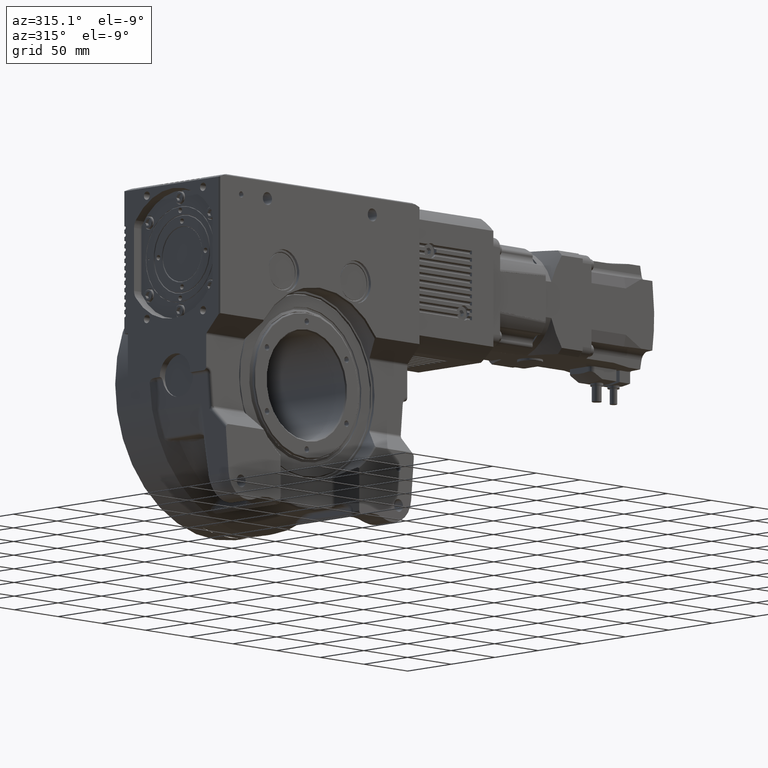
[diagram: clean part render]
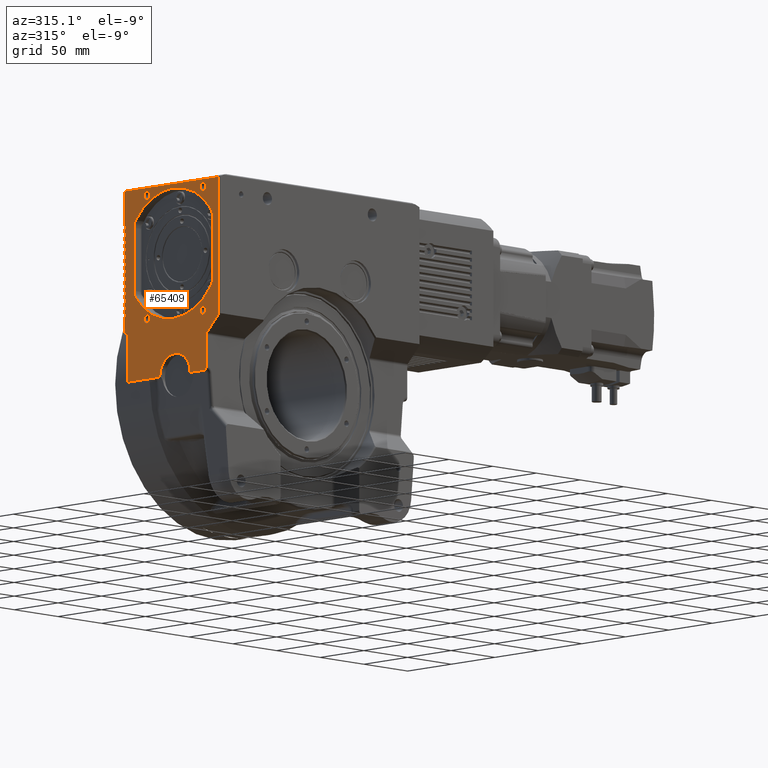
[diagram: same view with one face highlighted and labeled with its STEP entity id]
A machine part, auxiliary view. The second image highlights one B-rep face of the part: STEP entity #65409.
In plain terms, the highlighted planar face has unit normal (-1, 0, 0).
Its self-contained STEP definition (entity closure, byte-faithful):
#90 = VERTEX_POINT ( 'NONE', #10042 ) ;
#568 = ORIENTED_EDGE ( 'NONE', *, *, #54960, .F. ) ;
#798 = DIRECTION ( 'NONE',  ( 0.000000000000000000, 0.000000000000000000, 1.000000000000000000 ) ) ;
#954 = EDGE_LOOP ( 'NONE', ( #568, #42209, #30627, #84077, #67833, #1469, #57605, #60364, #23079, #32763, #3922, #20898, #27532, #69414, #47215, #58045, #7188, #55053, #57075, #6059, #73608, #80637, #40006, #68809, #33690, #39258, #44494, #31134, #46328, #24406, #71956, #26193, #37437, #9670, #10157, #25060, #73228, #69009, #79605, #34814, #80550, #64885, #57741, #33245, #50850, #38531, #49401, #59043, #56034, #17340, #39451 ) ) ;
#1327 = CARTESIAN_POINT ( 'NONE',  ( -115.0000000000000000, 58.00000000000000000, 128.5000000000000000 ) ) ;
#1425 = ORIENTED_EDGE ( 'NONE', *, *, #6509, .F. ) ;
#1455 = DIRECTION ( 'NONE',  ( -1.000000000000000000, 0.000000000000000000, 0.000000000000000000 ) ) ;
#1469 = ORIENTED_EDGE ( 'NONE', *, *, #36957, .T. ) ;
#1470 = CARTESIAN_POINT ( 'NONE',  ( -115.0000000000000000, 58.00000000000000000, -115.0000000000000000 ) ) ;
#1545 = EDGE_CURVE ( 'NONE', #48410, #48136, #83540, .T. ) ;
#1580 = CIRCLE ( 'NONE', #2941, 1.500000000000001332 ) ;
#1784 = AXIS2_PLACEMENT_3D ( 'NONE', #62451, #69384, #68946 ) ;
#1874 = CARTESIAN_POINT ( 'NONE',  ( -115.0000000000000000, 0.000000000000000000, 1.741031561343995111E-14 ) ) ;
#1908 = CARTESIAN_POINT ( 'NONE',  ( -115.0000000000000000, -36.00000000000000000, 30.00000000000000000 ) ) ;
#1968 = CARTESIAN_POINT ( 'NONE',  ( -115.0000000000000000, 58.00000000000000000, -115.0000000000000000 ) ) ;
#2428 = VECTOR ( 'NONE', #21539, 1000.000000000000000 ) ;
#2464 = CARTESIAN_POINT ( 'NONE',  ( -115.0000000000000000, 58.00000000000000000, 109.0000000000000000 ) ) ;
#2499 = AXIS2_PLACEMENT_3D ( 'NONE', #1874, #1455, #40603 ) ;
#2707 = CARTESIAN_POINT ( 'NONE',  ( -115.0000000000000000, 2.000000000000000000, 100.0000000000000000 ) ) ;
#2816 = CARTESIAN_POINT ( 'NONE',  ( -115.0000000000000000, 58.00000000000000000, 77.50000000000000000 ) ) ;
#2941 = AXIS2_PLACEMENT_3D ( 'NONE', #2464, #54659, #21601 ) ;
#2985 = DIRECTION ( 'NONE',  ( 1.000000000000000000, 0.000000000000000000, 0.000000000000000000 ) ) ;
#3071 = LINE ( 'NONE', #9625, #14437 ) ;
#3096 = AXIS2_PLACEMENT_3D ( 'NONE', #49364, #75075, #42401 ) ;
#3358 = EDGE_CURVE ( 'NONE', #48884, #35505, #1580, .T. ) ;
#3374 = CARTESIAN_POINT ( 'NONE',  ( -115.0000000000000000, 29.00000000000000000, -35.00000000000000000 ) ) ;
#3390 = CIRCLE ( 'NONE', #13107, 1.500000000000001332 ) ;
#3922 = ORIENTED_EDGE ( 'NONE', *, *, #76828, .T. ) ;
#4003 = VERTEX_POINT ( 'NONE', #31518 ) ;
#4032 = CARTESIAN_POINT ( 'NONE',  ( -115.0000000000000000, 54.00000000000000000, 40.00000000000000000 ) ) ;
#4077 = EDGE_CURVE ( 'NONE', #76255, #45218, #75825, .T. ) ;
#4094 = CARTESIAN_POINT ( 'NONE',  ( -115.0000000000000000, 56.50000000000000000, 85.00000000000000000 ) ) ;
#4646 = CARTESIAN_POINT ( 'NONE',  ( -115.0000000000000000, -43.00000000000000000, 74.16881729382110677 ) ) ;
#4686 = EDGE_CURVE ( 'NONE', #42840, #49336, #84642, .T. ) ;
#4720 = CARTESIAN_POINT ( 'NONE',  ( -115.0000000000000000, 58.00000000000000000, 59.50000000000000000 ) ) ;
#5030 = AXIS2_PLACEMENT_3D ( 'NONE', #40829, #46059, #67804 ) ;
#5206 = VECTOR ( 'NONE', #15466, 1000.000000000000000 ) ;
#5521 = CARTESIAN_POINT ( 'NONE',  ( -115.0000000000000000, -32.23797650080950206, 154.0034867487730139 ) ) ;
#5605 = DIRECTION ( 'NONE',  ( 0.000000000000000000, 1.000000000000000000, 0.000000000000000000 ) ) ;
#6046 = CARTESIAN_POINT ( 'NONE',  ( -115.0000000000000000, 58.00000000000000000, 115.0000000000000000 ) ) ;
#6059 = ORIENTED_EDGE ( 'NONE', *, *, #67694, .T. ) ;
#6389 = VECTOR ( 'NONE', #41954, 1000.000000000000000 ) ;
#6469 = DIRECTION ( 'NONE',  ( -1.000000000000000000, 0.000000000000000000, 0.000000000000000000 ) ) ;
#6475 = DIRECTION ( 'NONE',  ( 1.000000000000000000, 0.000000000000000000, 0.000000000000000000 ) ) ;
#6505 = AXIS2_PLACEMENT_3D ( 'NONE', #64081, #83667, #24052 ) ;
#6509 = EDGE_CURVE ( 'NONE', #18499, #75376, #11934, .T. ) ;
#6710 = CIRCLE ( 'NONE', #85882, 1.500000000000001332 ) ;
#7033 = CARTESIAN_POINT ( 'NONE',  ( -115.0000000000000000, -50.00000000000000000, 157.0000000000000000 ) ) ;
#7102 = DIRECTION ( 'NONE',  ( -1.513940488125214831E-16, 0.000000000000000000, -1.000000000000000000 ) ) ;
#7188 = ORIENTED_EDGE ( 'NONE', *, *, #8047, .T. ) ;
#7653 = DIRECTION ( 'NONE',  ( 1.000000000000000000, 0.000000000000000000, 0.000000000000000000 ) ) ;
#7798 = EDGE_CURVE ( 'NONE', #39890, #47943, #11759, .T. ) ;
#7863 = CARTESIAN_POINT ( 'NONE',  ( -115.0000000000000000, 58.00000000000000000, 74.50000000000000000 ) ) ;
#7919 = EDGE_CURVE ( 'NONE', #12868, #13797, #74654, .T. ) ;
#8047 = EDGE_CURVE ( 'NONE', #75565, #48884, #55279, .T. ) ;
#8616 = AXIS2_PLACEMENT_3D ( 'NONE', #34150, #54572, #74164 ) ;
#8973 = AXIS2_PLACEMENT_3D ( 'NONE', #61532, #13263, #46739 ) ;
#8994 = DIRECTION ( 'NONE',  ( -1.000000000000000000, 0.000000000000000000, 2.593979029498029835E-16 ) ) ;
#9155 = EDGE_CURVE ( 'NONE', #24251, #4003, #58745, .T. ) ;
#9190 = VERTEX_POINT ( 'NONE', #79623 ) ;
#9245 = CARTESIAN_POINT ( 'NONE',  ( -115.0000000000000000, 58.00000000000000000, 53.50000000000000000 ) ) ;
#9307 = CIRCLE ( 'NONE', #6505, 1.500000000000001332 ) ;
#9327 = VECTOR ( 'NONE', #19831, 1000.000000000000000 ) ;
#9625 = CARTESIAN_POINT ( 'NONE',  ( -115.0000000000000000, 58.00000000000000000, -115.0000000000000000 ) ) ;
#9670 = ORIENTED_EDGE ( 'NONE', *, *, #83689, .T. ) ;
#9998 = CARTESIAN_POINT ( 'NONE',  ( -115.0000000000000000, 56.50000000000000000, 103.0000000000000000 ) ) ;
#10009 = CIRCLE ( 'NONE', #3096, 9.999999999999994671 ) ;
#10042 = CARTESIAN_POINT ( 'NONE',  ( -115.0000000000000000, 58.00000000000000000, 71.50000000000000000 ) ) ;
#10048 = CARTESIAN_POINT ( 'NONE',  ( -115.0000000000000000, 32.23797650080950206, 49.39651325122689940 ) ) ;
#10157 = ORIENTED_EDGE ( 'NONE', *, *, #77236, .T. ) ;
#10451 = AXIS2_PLACEMENT_3D ( 'NONE', #78003, #51861, #31003 ) ;
#10892 = AXIS2_PLACEMENT_3D ( 'NONE', #32313, #38862, #52775 ) ;
#11067 = CARTESIAN_POINT ( 'NONE',  ( -115.0000000000000000, -32.23797650080950206, 147.2034867487730025 ) ) ;
#11146 = DIRECTION ( 'NONE',  ( 0.000000000000000000, 0.000000000000000000, 1.000000000000000000 ) ) ;
#11236 = EDGE_CURVE ( 'NONE', #9190, #77948, #3071, .T. ) ;
#11293 = DIRECTION ( 'NONE',  ( 0.000000000000000000, 0.000000000000000000, 1.000000000000000000 ) ) ;
#11466 = DIRECTION ( 'NONE',  ( 0.000000000000000000, 0.000000000000000000, 1.000000000000000000 ) ) ;
#11577 = CARTESIAN_POINT ( 'NONE',  ( -115.0000000000000000, -50.00000000000000000, 157.0000000000000000 ) ) ;
#11654 = VERTEX_POINT ( 'NONE', #56919 ) ;
#11702 = DIRECTION ( 'NONE',  ( -1.000000000000000000, 0.000000000000000000, 1.513940488125214831E-16 ) ) ;
#11759 = LINE ( 'NONE', #83976, #63520 ) ;
#11900 = LINE ( 'NONE', #85396, #31980 ) ;
#11934 = CIRCLE ( 'NONE', #60566, 3.399999999999986144 ) ;
#12036 = CIRCLE ( 'NONE', #20357, 1.500000000000001332 ) ;
#12052 = VERTEX_POINT ( 'NONE', #20315 ) ;
#12133 = PLANE ( 'NONE',  #57113 ) ;
#12340 = EDGE_CURVE ( 'NONE', #76255, #85749, #60395, .T. ) ;
#12570 = FACE_BOUND ( 'NONE', #36915, .T. ) ;
#12637 = ORIENTED_EDGE ( 'NONE', *, *, #15829, .T. ) ;
#12672 = EDGE_CURVE ( 'NONE', #70824, #39970, #77086, .T. ) ;
#12809 = CARTESIAN_POINT ( 'NONE',  ( -115.0000000000000000, 17.50000000000000000, 3.081487911019580167E-30 ) ) ;
#12868 = VERTEX_POINT ( 'NONE', #17754 ) ;
#12879 = CARTESIAN_POINT ( 'NONE',  ( -115.0000000000000000, 56.50000000000000000, 55.00000000000000000 ) ) ;
#13033 = EDGE_CURVE ( 'NONE', #19354, #29210, #18817, .T. ) ;
#13107 = AXIS2_PLACEMENT_3D ( 'NONE', #51383, #85302, #32224 ) ;
#13189 = CARTESIAN_POINT ( 'NONE',  ( -115.0000000000000000, 56.50000000000000000, 109.0000000000000000 ) ) ;
#13263 = DIRECTION ( 'NONE',  ( 1.000000000000000000, 0.000000000000000000, 0.000000000000000000 ) ) ;
#13405 = CARTESIAN_POINT ( 'NONE',  ( -115.0000000000000000, 59.00000000000000000, 0.000000000000000000 ) ) ;
#13480 = DIRECTION ( 'NONE',  ( -1.000000000000000000, 0.000000000000000000, 0.000000000000000000 ) ) ;
#13718 = CIRCLE ( 'NONE', #35926, 53.49999999999999289 ) ;
#13765 = EDGE_CURVE ( 'NONE', #64062, #20043, #33192, .T. ) ;
#13777 = VECTOR ( 'NONE', #81534, 1000.000000000000000 ) ;
#13797 = VERTEX_POINT ( 'NONE', #74489 ) ;
#14044 = DIRECTION ( 'NONE',  ( -1.000000000000000000, 0.000000000000000000, 2.593979029498029835E-16 ) ) ;
#14268 = EDGE_CURVE ( 'NONE', #42595, #82790, #71724, .T. ) ;
#14298 = CARTESIAN_POINT ( 'NONE',  ( -115.0000000000000000, 56.50000000000000000, 73.00000000000000000 ) ) ;
#14437 = VECTOR ( 'NONE', #29591, 1000.000000000000000 ) ;
#15033 = DIRECTION ( 'NONE',  ( 0.000000000000000000, 0.000000000000000000, 1.000000000000000000 ) ) ;
#15102 = CIRCLE ( 'NONE', #53964, 10.00000000000000888 ) ;
#15466 = DIRECTION ( 'NONE',  ( 0.000000000000000000, 1.000000000000000000, 0.000000000000000000 ) ) ;
#15590 = DIRECTION ( 'NONE',  ( -1.513940488125214831E-16, 0.000000000000000000, -1.000000000000000000 ) ) ;
#15824 = CARTESIAN_POINT ( 'NONE',  ( -115.0000000000000000, -33.00000000000000000, 0.000000000000000000 ) ) ;
#15829 = EDGE_CURVE ( 'NONE', #50937, #25652, #80333, .T. ) ;
#16005 = CARTESIAN_POINT ( 'NONE',  ( -115.0000000000000000, 58.00000000000000000, -115.0000000000000000 ) ) ;
#16062 = VERTEX_POINT ( 'NONE', #68798 ) ;
#16101 = CARTESIAN_POINT ( 'NONE',  ( -115.0000000000000000, 47.00000000000000000, 125.8311827061789927 ) ) ;
#16148 = CIRCLE ( 'NONE', #30035, 3.400000000000000355 ) ;
#16285 = VECTOR ( 'NONE', #38770, 1000.000000000000000 ) ;
#16309 = VERTEX_POINT ( 'NONE', #21207 ) ;
#17252 = EDGE_CURVE ( 'NONE', #48856, #68939, #3390, .T. ) ;
#17306 = ORIENTED_EDGE ( 'NONE', *, *, #26756, .F. ) ;
#17340 = ORIENTED_EDGE ( 'NONE', *, *, #54391, .T. ) ;
#17417 = AXIS2_PLACEMENT_3D ( 'NONE', #40685, #7653, #15033 ) ;
#17455 = AXIS2_PLACEMENT_3D ( 'NONE', #52531, #86042, #26442 ) ;
#17561 = DIRECTION ( 'NONE',  ( -1.000000000000000000, 0.000000000000000000, 0.000000000000000000 ) ) ;
#17579 = CIRCLE ( 'NONE', #5030, 1.500000000000001332 ) ;
#17644 = CARTESIAN_POINT ( 'NONE',  ( -115.0000000000000000, 58.00000000000000000, 109.0000000000000000 ) ) ;
#17730 = VECTOR ( 'NONE', #52652, 1000.000000000000000 ) ;
#17754 = CARTESIAN_POINT ( 'NONE',  ( -115.0000000000000000, -41.04597701149424438, 131.7693856271395987 ) ) ;
#17820 = DIRECTION ( 'NONE',  ( 1.000000000000000000, 0.000000000000000000, 0.000000000000000000 ) ) ;
#18101 = DIRECTION ( 'NONE',  ( -1.000000000000000000, 0.000000000000000000, 0.000000000000000000 ) ) ;
#18119 = CIRCLE ( 'NONE', #70892, 3.399999999999986144 ) ;
#18133 = CIRCLE ( 'NONE', #79263, 3.399999999999986144 ) ;
#18296 = CARTESIAN_POINT ( 'NONE',  ( -115.0000000000000000, -43.00000000000000000, 71.06472740753949324 ) ) ;
#18346 = EDGE_CURVE ( 'NONE', #39970, #61842, #62416, .T. ) ;
#18382 = CIRCLE ( 'NONE', #36451, 53.49999999999999289 ) ;
#18499 = VERTEX_POINT ( 'NONE', #11067 ) ;
#18560 = CIRCLE ( 'NONE', #74159, 17.50000000000000000 ) ;
#18643 = VERTEX_POINT ( 'NONE', #58450 ) ;
#18690 = DIRECTION ( 'NONE',  ( -1.513940488125214831E-16, 0.000000000000000000, -1.000000000000000000 ) ) ;
#18730 = CARTESIAN_POINT ( 'NONE',  ( -115.0000000000000000, 58.00000000000000000, -115.0000000000000000 ) ) ;
#18733 = CARTESIAN_POINT ( 'NONE',  ( -115.0000000000000000, 58.00000000000000000, 119.5000000000000000 ) ) ;
#18817 = CIRCLE ( 'NONE', #17455, 1.500000000000001332 ) ;
#19131 = CARTESIAN_POINT ( 'NONE',  ( -115.0000000000000000, 58.00000000000000000, -115.0000000000000000 ) ) ;
#19354 = VERTEX_POINT ( 'NONE', #12879 ) ;
#19500 = CARTESIAN_POINT ( 'NONE',  ( -115.0000000000000000, -32.23797650080950206, 52.79651325122699745 ) ) ;
#19514 = VERTEX_POINT ( 'NONE', #28066 ) ;
#19524 = DIRECTION ( 'NONE',  ( 0.000000000000000000, 0.000000000000000000, 1.000000000000000000 ) ) ;
#19547 = EDGE_CURVE ( 'NONE', #65651, #22959, #66059, .T. ) ;
#19652 = DIRECTION ( 'NONE',  ( 1.000000000000000000, 3.151521727179109512E-31, -6.560422470226279382E-46 ) ) ;
#19831 = DIRECTION ( 'NONE',  ( -1.513940488125214831E-16, 0.000000000000000000, -1.000000000000000000 ) ) ;
#19914 = LINE ( 'NONE', #13405, #56134 ) ;
#20043 = VERTEX_POINT ( 'NONE', #29654 ) ;
#20315 = CARTESIAN_POINT ( 'NONE',  ( -115.0000000000000000, 56.50000000000000000, 61.00000000000000000 ) ) ;
#20357 = AXIS2_PLACEMENT_3D ( 'NONE', #72578, #6475, #798 ) ;
#20452 = CARTESIAN_POINT ( 'NONE',  ( -115.0000000000000000, 58.00000000000000000, 56.50000000000000000 ) ) ;
#20637 = EDGE_CURVE ( 'NONE', #50679, #90, #12036, .T. ) ;
#20664 = DIRECTION ( 'NONE',  ( -1.000000000000000000, 0.000000000000000000, 0.000000000000000000 ) ) ;
#20834 = EDGE_CURVE ( 'NONE', #90, #65651, #70331, .T. ) ;
#20898 = ORIENTED_EDGE ( 'NONE', *, *, #37695, .F. ) ;
#21137 = CARTESIAN_POINT ( 'NONE',  ( -115.0000000000000000, 45.04597701149420175, 68.23061437286040132 ) ) ;
#21139 = DIRECTION ( 'NONE',  ( 0.000000000000000000, 0.000000000000000000, 1.000000000000000000 ) ) ;
#21147 = EDGE_CURVE ( 'NONE', #69825, #72924, #9307, .T. ) ;
#21203 = VERTEX_POINT ( 'NONE', #15824 ) ;
#21207 = CARTESIAN_POINT ( 'NONE',  ( -115.0000000000000000, 58.00000000000000000, 95.50000000000000000 ) ) ;
#21539 = DIRECTION ( 'NONE',  ( -1.513940488125214831E-16, 0.000000000000000000, -1.000000000000000000 ) ) ;
#21601 = DIRECTION ( 'NONE',  ( 0.000000000000000000, 0.000000000000000000, 1.000000000000000000 ) ) ;
#21968 = CIRCLE ( 'NONE', #56678, 1.500000000000001332 ) ;
#22045 = EDGE_CURVE ( 'NONE', #22959, #64062, #67798, .T. ) ;
#22166 = VERTEX_POINT ( 'NONE', #77807 ) ;
#22427 = VERTEX_POINT ( 'NONE', #48591 ) ;
#22470 = DIRECTION ( 'NONE',  ( 0.000000000000000000, 1.199037244548930032E-16, -1.000000000000000000 ) ) ;
#22669 = AXIS2_PLACEMENT_3D ( 'NONE', #44737, #43443, #11293 ) ;
#22959 = VERTEX_POINT ( 'NONE', #24829 ) ;
#23079 = ORIENTED_EDGE ( 'NONE', *, *, #11236, .T. ) ;
#23096 = EDGE_CURVE ( 'NONE', #50937, #38831, #72642, .T. ) ;
#23353 = VECTOR ( 'NONE', #51320, 1000.000000000000000 ) ;
#23938 = VERTEX_POINT ( 'NONE', #11577 ) ;
#24052 = DIRECTION ( 'NONE',  ( 0.000000000000000000, 0.000000000000000000, 1.000000000000000000 ) ) ;
#24251 = VERTEX_POINT ( 'NONE', #51481 ) ;
#24406 = ORIENTED_EDGE ( 'NONE', *, *, #17252, .T. ) ;
#24829 = CARTESIAN_POINT ( 'NONE',  ( -115.0000000000000000, 56.50000000000000000, 67.00000000000000000 ) ) ;
#24912 = ORIENTED_EDGE ( 'NONE', *, *, #4686, .F. ) ;
#24933 = CARTESIAN_POINT ( 'NONE',  ( -115.0000000000000000, -36.00000000000000000, 28.75735931288070191 ) ) ;
#25060 = ORIENTED_EDGE ( 'NONE', *, *, #20637, .T. ) ;
#25375 = DIRECTION ( 'NONE',  ( 0.000000000000000000, 0.000000000000000000, 1.000000000000000000 ) ) ;
#25524 = CIRCLE ( 'NONE', #83906, 1.500000000000001332 ) ;
#25652 = VERTEX_POINT ( 'NONE', #41754 ) ;
#26193 = ORIENTED_EDGE ( 'NONE', *, *, #40410, .T. ) ;
#26245 = DIRECTION ( 'NONE',  ( 0.000000000000000000, -1.000000000000000000, 0.000000000000000000 ) ) ;
#26357 = CARTESIAN_POINT ( 'NONE',  ( -115.0000000000000000, -32.23797650080950206, 45.99651325122700030 ) ) ;
#26442 = DIRECTION ( 'NONE',  ( 0.000000000000000000, 0.000000000000000000, 1.000000000000000000 ) ) ;
#26483 = FACE_BOUND ( 'NONE', #48209, .T. ) ;
#26756 = EDGE_CURVE ( 'NONE', #49336, #42840, #69363, .T. ) ;
#27013 = CARTESIAN_POINT ( 'NONE',  ( -115.0000000000000000, 58.00000000000000000, 107.5000000000000000 ) ) ;
#27354 = CARTESIAN_POINT ( 'NONE',  ( -115.0000000000000000, 58.00000000000000000, 103.0000000000000000 ) ) ;
#27372 = ORIENTED_EDGE ( 'NONE', *, *, #61710, .F. ) ;
#27532 = ORIENTED_EDGE ( 'NONE', *, *, #43905, .T. ) ;
#27677 = CARTESIAN_POINT ( 'NONE',  ( -115.0000000000000000, -36.00000000000000000, 3.000000000000000000 ) ) ;
#28066 = CARTESIAN_POINT ( 'NONE',  ( -115.0000000000000000, 58.00000000000000000, 113.5000000000000000 ) ) ;
#28474 = CARTESIAN_POINT ( 'NONE',  ( -115.0000000000000000, -36.87867965644035451, 30.87867965644034740 ) ) ;
#28862 = AXIS2_PLACEMENT_3D ( 'NONE', #69953, #2985, #29510 ) ;
#28927 = VERTEX_POINT ( 'NONE', #84123 ) ;
#29210 = VERTEX_POINT ( 'NONE', #9245 ) ;
#29510 = DIRECTION ( 'NONE',  ( 0.000000000000000000, 0.000000000000000000, 1.000000000000000000 ) ) ;
#29591 = DIRECTION ( 'NONE',  ( -1.513940488125214831E-16, 0.000000000000000000, -1.000000000000000000 ) ) ;
#29654 = CARTESIAN_POINT ( 'NONE',  ( -115.0000000000000000, 58.00000000000000000, 62.50000000000000000 ) ) ;
#29900 = LINE ( 'NONE', #3374, #71205 ) ;
#29997 = VERTEX_POINT ( 'NONE', #64984 ) ;
#30035 = AXIS2_PLACEMENT_3D ( 'NONE', #51153, #18101, #31567 ) ;
#30274 = CARTESIAN_POINT ( 'NONE',  ( -115.0000000000000000, 59.00000000000000000, 0.000000000000000000 ) ) ;
#30322 = CARTESIAN_POINT ( 'NONE',  ( -115.0000000000000000, 58.00000000000000000, -115.0000000000000000 ) ) ;
#30627 = ORIENTED_EDGE ( 'NONE', *, *, #80358, .T. ) ;
#30998 = CIRCLE ( 'NONE', #50505, 1.500000000000001332 ) ;
#31003 = DIRECTION ( 'NONE',  ( 0.000000000000000000, 0.000000000000000000, 1.000000000000000000 ) ) ;
#31134 = ORIENTED_EDGE ( 'NONE', *, *, #18346, .T. ) ;
#31149 = CARTESIAN_POINT ( 'NONE',  ( -115.0000000000000000, 58.00000000000000000, 127.0000000000000000 ) ) ;
#31486 = CIRCLE ( 'NONE', #49565, 1.500000000000001332 ) ;
#31518 = CARTESIAN_POINT ( 'NONE',  ( -115.0000000000000000, 23.06776437421590131, 0.000000000000000000 ) ) ;
#31567 = DIRECTION ( 'NONE',  ( 0.000000000000000000, 0.000000000000000000, 1.000000000000000000 ) ) ;
#31681 = DIRECTION ( 'NONE',  ( 0.000000000000000000, 0.000000000000000000, 1.000000000000000000 ) ) ;
#31704 = DIRECTION ( 'NONE',  ( 1.000000000000000000, 0.000000000000000000, 0.000000000000000000 ) ) ;
#31768 = DIRECTION ( 'NONE',  ( 1.000000000000000000, -1.050507242393035847E-31, -7.289358300251429854E-47 ) ) ;
#31818 = AXIS2_PLACEMENT_3D ( 'NONE', #45427, #54540, #68872 ) ;
#31959 = CARTESIAN_POINT ( 'NONE',  ( -115.0000000000000000, 58.00000000000000000, 79.00000000000000000 ) ) ;
#31980 = VECTOR ( 'NONE', #77172, 1000.000000000000000 ) ;
#32224 = DIRECTION ( 'NONE',  ( 0.000000000000000000, 0.000000000000000000, 1.000000000000000000 ) ) ;
#32230 = EDGE_CURVE ( 'NONE', #75376, #18499, #33310, .T. ) ;
#32313 = CARTESIAN_POINT ( 'NONE',  ( -115.0000000000000000, -33.00000000000000000, 74.16881729382110677 ) ) ;
#32543 = CARTESIAN_POINT ( 'NONE',  ( -115.0000000000000000, 32.23797650080950206, 150.6034867487730367 ) ) ;
#32685 = ORIENTED_EDGE ( 'NONE', *, *, #77682, .F. ) ;
#32763 = ORIENTED_EDGE ( 'NONE', *, *, #49944, .F. ) ;
#33115 = DIRECTION ( 'NONE',  ( 1.513940488125214831E-16, 0.000000000000000000, 1.000000000000000000 ) ) ;
#33192 = LINE ( 'NONE', #40563, #43894 ) ;
#33215 = CARTESIAN_POINT ( 'NONE',  ( -115.0000000000000000, 32.23797650080950206, 49.39651325122689940 ) ) ;
#33222 = ORIENTED_EDGE ( 'NONE', *, *, #34606, .F. ) ;
#33245 = ORIENTED_EDGE ( 'NONE', *, *, #72937, .T. ) ;
#33310 = CIRCLE ( 'NONE', #76342, 3.399999999999986144 ) ;
#33406 = DIRECTION ( 'NONE',  ( 0.000000000000000000, -1.000000000000000000, 0.000000000000000000 ) ) ;
#33530 = CIRCLE ( 'NONE', #82163, 1.500000000000001332 ) ;
#33690 = ORIENTED_EDGE ( 'NONE', *, *, #44075, .T. ) ;
#33980 = DIRECTION ( 'NONE',  ( 1.070517585466211820E-16, -0.7071067811865460184, 0.7071067811865489050 ) ) ;
#34150 = CARTESIAN_POINT ( 'NONE',  ( -115.0000000000000000, 58.00000000000000000, 61.00000000000000000 ) ) ;
#34399 = EDGE_CURVE ( 'NONE', #68939, #35895, #11900, .T. ) ;
#34591 = AXIS2_PLACEMENT_3D ( 'NONE', #10048, #83970, #63106 ) ;
#34606 = EDGE_CURVE ( 'NONE', #29997, #43302, #18133, .T. ) ;
#34814 = ORIENTED_EDGE ( 'NONE', *, *, #13765, .T. ) ;
#35418 = CARTESIAN_POINT ( 'NONE',  ( -115.0000000000000000, -32.23797650080950206, 150.6034867487730367 ) ) ;
#35505 = VERTEX_POINT ( 'NONE', #27013 ) ;
#35895 = VERTEX_POINT ( 'NONE', #66068 ) ;
#35926 = AXIS2_PLACEMENT_3D ( 'NONE', #2707, #43115, #69234 ) ;
#36294 = EDGE_CURVE ( 'NONE', #61983, #11654, #10009, .T. ) ;
#36451 = AXIS2_PLACEMENT_3D ( 'NONE', #52759, #14044, #59727 ) ;
#36454 = DIRECTION ( 'NONE',  ( 0.000000000000000000, 0.000000000000000000, 1.000000000000000000 ) ) ;
#36619 = LINE ( 'NONE', #7033, #59981 ) ;
#36831 = DIRECTION ( 'NONE',  ( 0.000000000000000000, 0.000000000000000000, 1.000000000000000000 ) ) ;
#36915 = EDGE_LOOP ( 'NONE', ( #84781, #40058, #84493, #12637, #77018, #46394, #27372, #69073, #32685 ) ) ;
#36957 = EDGE_CURVE ( 'NONE', #85749, #84709, #29900, .T. ) ;
#37426 = CARTESIAN_POINT ( 'NONE',  ( -115.0000000000000000, 58.00000000000000000, -115.0000000000000000 ) ) ;
#37437 = ORIENTED_EDGE ( 'NONE', *, *, #21147, .T. ) ;
#37695 = EDGE_CURVE ( 'NONE', #43522, #28927, #64378, .T. ) ;
#37708 = EDGE_CURVE ( 'NONE', #39890, #24251, #51834, .T. ) ;
#37860 = CARTESIAN_POINT ( 'NONE',  ( -115.0000000000000000, -33.00000000000000000, 125.8311827061789927 ) ) ;
#38224 = CARTESIAN_POINT ( 'NONE',  ( -115.0000000000000000, 0.000000000000000000, 1.741031561343995111E-14 ) ) ;
#38411 = DIRECTION ( 'NONE',  ( 1.000000000000000000, 0.000000000000000000, 0.000000000000000000 ) ) ;
#38531 = ORIENTED_EDGE ( 'NONE', *, *, #79210, .T. ) ;
#38770 = DIRECTION ( 'NONE',  ( -1.513940488125214831E-16, 0.000000000000000000, -1.000000000000000000 ) ) ;
#38831 = VERTEX_POINT ( 'NONE', #42725 ) ;
#38862 = DIRECTION ( 'NONE',  ( 1.000000000000000000, 0.000000000000000000, 0.000000000000000000 ) ) ;
#39242 = VERTEX_POINT ( 'NONE', #72916 ) ;
#39258 = ORIENTED_EDGE ( 'NONE', *, *, #54758, .T. ) ;
#39338 = DIRECTION ( 'NONE',  ( 1.000000000000000000, 0.000000000000000000, 0.000000000000000000 ) ) ;
#39451 = ORIENTED_EDGE ( 'NONE', *, *, #44842, .F. ) ;
#39577 = VERTEX_POINT ( 'NONE', #12809 ) ;
#39766 = EDGE_CURVE ( 'NONE', #50038, #16062, #74542, .T. ) ;
#39890 = VERTEX_POINT ( 'NONE', #4032 ) ;
#39970 = VERTEX_POINT ( 'NONE', #59689 ) ;
#40006 = ORIENTED_EDGE ( 'NONE', *, *, #68065, .T. ) ;
#40058 = ORIENTED_EDGE ( 'NONE', *, *, #53744, .T. ) ;
#40092 = CARTESIAN_POINT ( 'NONE',  ( -115.0000000000000000, 37.00000000000000000, 125.8311827061789927 ) ) ;
#40410 = EDGE_CURVE ( 'NONE', #35895, #69825, #25524, .T. ) ;
#40563 = CARTESIAN_POINT ( 'NONE',  ( -115.0000000000000000, 58.00000000000000000, -115.0000000000000000 ) ) ;
#40603 = DIRECTION ( 'NONE',  ( 0.000000000000000000, 0.000000000000000000, 1.000000000000000000 ) ) ;
#40652 = CARTESIAN_POINT ( 'NONE',  ( -115.0000000000000000, -50.00000000000000000, 44.00000000000000000 ) ) ;
#40685 = CARTESIAN_POINT ( 'NONE',  ( -115.0000000000000000, 58.00000000000000000, 67.00000000000000000 ) ) ;
#40761 = CARTESIAN_POINT ( 'NONE',  ( -115.0000000000000000, 47.00000000000000000, 128.9352725924605920 ) ) ;
#40829 = CARTESIAN_POINT ( 'NONE',  ( -115.0000000000000000, 58.00000000000000000, 97.00000000000000000 ) ) ;
#41543 = CARTESIAN_POINT ( 'NONE',  ( -115.0000000000000000, 58.00000000000000000, -115.0000000000000000 ) ) ;
#41565 = LINE ( 'NONE', #47232, #5206 ) ;
#41754 = CARTESIAN_POINT ( 'NONE',  ( -115.0000000000000000, -41.04597701149424438, 68.23061437286040132 ) ) ;
#41954 = DIRECTION ( 'NONE',  ( -1.513940488125214831E-16, 0.000000000000000000, -1.000000000000000000 ) ) ;
#42179 = CARTESIAN_POINT ( 'NONE',  ( -115.0000000000000000, 58.00000000000000000, -115.0000000000000000 ) ) ;
#42209 = ORIENTED_EDGE ( 'NONE', *, *, #85258, .T. ) ;
#42401 = DIRECTION ( 'NONE',  ( 0.000000000000000000, 0.000000000000000000, 1.000000000000000000 ) ) ;
#42428 = CARTESIAN_POINT ( 'NONE',  ( -115.0000000000000000, 58.00000000000000000, 103.0000000000000000 ) ) ;
#42595 = VERTEX_POINT ( 'NONE', #19500 ) ;
#42725 = CARTESIAN_POINT ( 'NONE',  ( -115.0000000000000000, -43.00000000000000000, 125.8311827061789927 ) ) ;
#42840 = VERTEX_POINT ( 'NONE', #76853 ) ;
#43115 = DIRECTION ( 'NONE',  ( -1.000000000000000000, 0.000000000000000000, 2.593979029498029835E-16 ) ) ;
#43302 = VERTEX_POINT ( 'NONE', #53207 ) ;
#43443 = DIRECTION ( 'NONE',  ( 1.000000000000000000, 0.000000000000000000, 0.000000000000000000 ) ) ;
#43522 = VERTEX_POINT ( 'NONE', #18733 ) ;
#43894 = VECTOR ( 'NONE', #7102, 1000.000000000000000 ) ;
#43905 = EDGE_CURVE ( 'NONE', #43522, #22427, #85971, .T. ) ;
#44075 = EDGE_CURVE ( 'NONE', #16309, #39242, #73328, .T. ) ;
#44124 = EDGE_CURVE ( 'NONE', #23938, #9190, #41565, .T. ) ;
#44140 = AXIS2_PLACEMENT_3D ( 'NONE', #17644, #69848, #11146 ) ;
#44391 = DIRECTION ( 'NONE',  ( 0.000000000000000000, -6.938893903907222461E-16, 1.000000000000000000 ) ) ;
#44494 = ORIENTED_EDGE ( 'NONE', *, *, #12672, .T. ) ;
#44737 = CARTESIAN_POINT ( 'NONE',  ( -115.0000000000000000, 58.00000000000000000, 91.00000000000000000 ) ) ;
#44842 = EDGE_CURVE ( 'NONE', #70455, #39577, #45554, .T. ) ;
#44923 = CARTESIAN_POINT ( 'NONE',  ( -115.0000000000000000, 32.23797650080950206, 150.6034867487730367 ) ) ;
#44932 = DIRECTION ( 'NONE',  ( -1.000000000000000000, 0.000000000000000000, 0.000000000000000000 ) ) ;
#45218 = VERTEX_POINT ( 'NONE', #27677 ) ;
#45427 = CARTESIAN_POINT ( 'NONE',  ( -115.0000000000000000, -33.00000000000000000, 3.000000000000000000 ) ) ;
#45554 = CIRCLE ( 'NONE', #2499, 17.50000000000000000 ) ;
#45597 = CARTESIAN_POINT ( 'NONE',  ( -115.0000000000000000, -51.00000000000000000, -115.0000000000000000 ) ) ;
#45761 = CARTESIAN_POINT ( 'NONE',  ( -115.0000000000000000, 0.000000000000000000, 17.50000000000000000 ) ) ;
#46059 = DIRECTION ( 'NONE',  ( 1.000000000000000000, 0.000000000000000000, 0.000000000000000000 ) ) ;
#46097 = AXIS2_PLACEMENT_3D ( 'NONE', #42428, #68973, #75931 ) ;
#46299 = ORIENTED_EDGE ( 'NONE', *, *, #32230, .F. ) ;
#46328 = ORIENTED_EDGE ( 'NONE', *, *, #49494, .T. ) ;
#46394 = ORIENTED_EDGE ( 'NONE', *, *, #36294, .T. ) ;
#46419 = EDGE_CURVE ( 'NONE', #22427, #22166, #6710, .T. ) ;
#46514 = DIRECTION ( 'NONE',  ( 2.593979029498029835E-16, 0.000000000000000000, 1.000000000000000000 ) ) ;
#46608 = DIRECTION ( 'NONE',  ( -1.513940488125214831E-16, 0.000000000000000000, -1.000000000000000000 ) ) ;
#46739 = DIRECTION ( 'NONE',  ( 0.000000000000000000, 0.000000000000000000, 1.000000000000000000 ) ) ;
#47200 = EDGE_CURVE ( 'NONE', #61692, #18643, #15102, .T. ) ;
#47203 = DIRECTION ( 'NONE',  ( 0.000000000000000000, 0.000000000000000000, 1.000000000000000000 ) ) ;
#47215 = ORIENTED_EDGE ( 'NONE', *, *, #66569, .T. ) ;
#47232 = CARTESIAN_POINT ( 'NONE',  ( -115.0000000000000000, -51.00000000000000000, 157.0000000000000000 ) ) ;
#47714 = CIRCLE ( 'NONE', #65782, 1.500000000000001332 ) ;
#47943 = VERTEX_POINT ( 'NONE', #57052 ) ;
#48102 = VECTOR ( 'NONE', #62967, 1000.000000000000000 ) ;
#48136 = VERTEX_POINT ( 'NONE', #20452 ) ;
#48209 = EDGE_LOOP ( 'NONE', ( #50851, #63774 ) ) ;
#48410 = VERTEX_POINT ( 'NONE', #4720 ) ;
#48440 = VECTOR ( 'NONE', #57894, 1000.000000000000000 ) ;
#48545 = CARTESIAN_POINT ( 'NONE',  ( -115.0000000000000000, 58.00000000000000000, 83.50000000000000000 ) ) ;
#48591 = CARTESIAN_POINT ( 'NONE',  ( -115.0000000000000000, 58.00000000000000000, 116.5000000000000000 ) ) ;
#48642 = LINE ( 'NONE', #16005, #62440 ) ;
#48826 = EDGE_CURVE ( 'NONE', #43302, #29997, #18119, .T. ) ;
#48856 = VERTEX_POINT ( 'NONE', #4094 ) ;
#48884 = VERTEX_POINT ( 'NONE', #13189 ) ;
#49336 = VERTEX_POINT ( 'NONE', #59649 ) ;
#49364 = CARTESIAN_POINT ( 'NONE',  ( -115.0000000000000000, 37.00000000000000000, 74.16881729382110677 ) ) ;
#49401 = ORIENTED_EDGE ( 'NONE', *, *, #7798, .F. ) ;
#49494 = EDGE_CURVE ( 'NONE', #61842, #48856, #66814, .T. ) ;
#49565 = AXIS2_PLACEMENT_3D ( 'NONE', #70195, #52338, #58029 ) ;
#49944 = EDGE_CURVE ( 'NONE', #79834, #77948, #33530, .T. ) ;
#50038 = VERTEX_POINT ( 'NONE', #58150 ) ;
#50505 = AXIS2_PLACEMENT_3D ( 'NONE', #27354, #69067, #74318 ) ;
#50587 = VECTOR ( 'NONE', #56233, 1000.000000000000000 ) ;
#50679 = VERTEX_POINT ( 'NONE', #14298 ) ;
#50850 = ORIENTED_EDGE ( 'NONE', *, *, #13033, .T. ) ;
#50851 = ORIENTED_EDGE ( 'NONE', *, *, #14268, .F. ) ;
#50898 = DIRECTION ( 'NONE',  ( 0.000000000000000000, 1.000000000000000000, 0.000000000000000000 ) ) ;
#50937 = VERTEX_POINT ( 'NONE', #4646 ) ;
#51109 = CARTESIAN_POINT ( 'NONE',  ( -115.0000000000000000, 56.50000000000000000, 79.00000000000000000 ) ) ;
#51153 = CARTESIAN_POINT ( 'NONE',  ( -115.0000000000000000, -32.23797650080950206, 49.39651325122699888 ) ) ;
#51320 = DIRECTION ( 'NONE',  ( -1.513940488125214831E-16, 0.000000000000000000, -1.000000000000000000 ) ) ;
#51383 = CARTESIAN_POINT ( 'NONE',  ( -115.0000000000000000, 58.00000000000000000, 85.00000000000000000 ) ) ;
#51481 = CARTESIAN_POINT ( 'NONE',  ( -115.0000000000000000, 54.00000000000000000, 0.000000000000000000 ) ) ;
#51514 = AXIS2_PLACEMENT_3D ( 'NONE', #68296, #54811, #55675 ) ;
#51751 = LINE ( 'NONE', #19131, #85092 ) ;
#51834 = LINE ( 'NONE', #60118, #58864 ) ;
#51861 = DIRECTION ( 'NONE',  ( 1.000000000000000000, 0.000000000000000000, 0.000000000000000000 ) ) ;
#52015 = CARTESIAN_POINT ( 'NONE',  ( -115.0000000000000000, 58.00000000000000000, 68.50000000000000000 ) ) ;
#52041 = EDGE_CURVE ( 'NONE', #79222, #50038, #62827, .T. ) ;
#52338 = DIRECTION ( 'NONE',  ( 1.000000000000000000, 0.000000000000000000, 0.000000000000000000 ) ) ;
#52531 = CARTESIAN_POINT ( 'NONE',  ( -115.0000000000000000, 58.00000000000000000, 55.00000000000000000 ) ) ;
#52652 = DIRECTION ( 'NONE',  ( -1.513940488125214831E-16, 0.000000000000000000, -1.000000000000000000 ) ) ;
#52759 = CARTESIAN_POINT ( 'NONE',  ( -115.0000000000000000, 2.000000000000000000, 100.0000000000000000 ) ) ;
#52775 = DIRECTION ( 'NONE',  ( 0.000000000000000000, 0.000000000000000000, 1.000000000000000000 ) ) ;
#53058 = CARTESIAN_POINT ( 'NONE',  ( -115.0000000000000000, -32.23797650080950206, 150.6034867487730367 ) ) ;
#53207 = CARTESIAN_POINT ( 'NONE',  ( -115.0000000000000000, 32.23797650080950206, 147.2034867487730025 ) ) ;
#53339 = CARTESIAN_POINT ( 'NONE',  ( -115.0000000000000000, 58.00000000000000000, 86.50000000000000000 ) ) ;
#53513 = EDGE_CURVE ( 'NONE', #61983, #25652, #18382, .T. ) ;
#53744 = EDGE_CURVE ( 'NONE', #12868, #38831, #82310, .T. ) ;
#53964 = AXIS2_PLACEMENT_3D ( 'NONE', #40092, #19652, #80122 ) ;
#54212 = CARTESIAN_POINT ( 'NONE',  ( -115.0000000000000000, 58.00000000000000000, 97.00000000000000000 ) ) ;
#54239 = ORIENTED_EDGE ( 'NONE', *, *, #48826, .F. ) ;
#54344 = DIRECTION ( 'NONE',  ( 0.000000000000000000, 0.000000000000000000, 1.000000000000000000 ) ) ;
#54391 = EDGE_CURVE ( 'NONE', #4003, #39577, #85832, .T. ) ;
#54540 = DIRECTION ( 'NONE',  ( -1.000000000000000000, 0.000000000000000000, 0.000000000000000000 ) ) ;
#54572 = DIRECTION ( 'NONE',  ( 1.000000000000000000, 0.000000000000000000, 0.000000000000000000 ) ) ;
#54659 = DIRECTION ( 'NONE',  ( 1.000000000000000000, 0.000000000000000000, 0.000000000000000000 ) ) ;
#54758 = EDGE_CURVE ( 'NONE', #39242, #70824, #74101, .T. ) ;
#54811 = DIRECTION ( 'NONE',  ( 1.000000000000000000, 0.000000000000000000, 0.000000000000000000 ) ) ;
#54960 = EDGE_CURVE ( 'NONE', #57438, #70455, #18560, .T. ) ;
#55053 = ORIENTED_EDGE ( 'NONE', *, *, #3358, .T. ) ;
#55279 = CIRCLE ( 'NONE', #44140, 1.500000000000001332 ) ;
#55493 = CIRCLE ( 'NONE', #31818, 3.000000000000000000 ) ;
#55675 = DIRECTION ( 'NONE',  ( 0.000000000000000000, 0.000000000000000000, 1.000000000000000000 ) ) ;
#55845 = CIRCLE ( 'NONE', #8616, 1.500000000000001332 ) ;
#56034 = ORIENTED_EDGE ( 'NONE', *, *, #9155, .T. ) ;
#56064 = AXIS2_PLACEMENT_3D ( 'NONE', #66649, #71856, #66201 ) ;
#56096 = DIRECTION ( 'NONE',  ( -1.513940488125214831E-16, 0.000000000000000000, -1.000000000000000000 ) ) ;
#56134 = VECTOR ( 'NONE', #33406, 1000.000000000000000 ) ;
#56233 = DIRECTION ( 'NONE',  ( -1.513940488125214831E-16, 0.000000000000000000, -1.000000000000000000 ) ) ;
#56539 = LINE ( 'NONE', #42179, #79167 ) ;
#56678 = AXIS2_PLACEMENT_3D ( 'NONE', #85833, #38411, #11466 ) ;
#56919 = CARTESIAN_POINT ( 'NONE',  ( -115.0000000000000000, 47.00000000000000000, 74.16881729382110677 ) ) ;
#56998 = CARTESIAN_POINT ( 'NONE',  ( -115.0000000000000000, 58.00000000000000000, 115.0000000000000000 ) ) ;
#57052 = CARTESIAN_POINT ( 'NONE',  ( -115.0000000000000000, 58.00000000000000000, 40.00000000000000000 ) ) ;
#57075 = ORIENTED_EDGE ( 'NONE', *, *, #75014, .T. ) ;
#57113 = AXIS2_PLACEMENT_3D ( 'NONE', #45597, #11702, #5605 ) ;
#57400 = VECTOR ( 'NONE', #26245, 1000.000000000000000 ) ;
#57438 = VERTEX_POINT ( 'NONE', #64364 ) ;
#57605 = ORIENTED_EDGE ( 'NONE', *, *, #66019, .T. ) ;
#57629 = EDGE_CURVE ( 'NONE', #70311, #16309, #17579, .T. ) ;
#57741 = ORIENTED_EDGE ( 'NONE', *, *, #1545, .T. ) ;
#57814 = FACE_BOUND ( 'NONE', #82712, .T. ) ;
#57894 = DIRECTION ( 'NONE',  ( 0.000000000000000000, -1.000000000000000000, 0.000000000000000000 ) ) ;
#58029 = DIRECTION ( 'NONE',  ( 0.000000000000000000, 0.000000000000000000, 1.000000000000000000 ) ) ;
#58045 = ORIENTED_EDGE ( 'NONE', *, *, #73304, .T. ) ;
#58150 = CARTESIAN_POINT ( 'NONE',  ( -115.0000000000000000, 58.00000000000000000, 101.5000000000000000 ) ) ;
#58333 = DIRECTION ( 'NONE',  ( 0.000000000000000000, 0.000000000000000000, 1.000000000000000000 ) ) ;
#58450 = CARTESIAN_POINT ( 'NONE',  ( -115.0000000000000000, 45.04597701149420175, 131.7693856271397976 ) ) ;
#58505 = DIRECTION ( 'NONE',  ( 0.000000000000000000, 0.000000000000000000, 1.000000000000000000 ) ) ;
#58665 = CIRCLE ( 'NONE', #85042, 1.500000000000001332 ) ;
#58676 = FACE_OUTER_BOUND ( 'NONE', #954, .T. ) ;
#58745 = LINE ( 'NONE', #77043, #48440 ) ;
#58864 = VECTOR ( 'NONE', #46608, 1000.000000000000000 ) ;
#59039 = EDGE_CURVE ( 'NONE', #82790, #42595, #16148, .T. ) ;
#59043 = ORIENTED_EDGE ( 'NONE', *, *, #37708, .T. ) ;
#59649 = CARTESIAN_POINT ( 'NONE',  ( -115.0000000000000000, 32.23797650080950206, 52.79651325122689798 ) ) ;
#59689 = CARTESIAN_POINT ( 'NONE',  ( -115.0000000000000000, 58.00000000000000000, 89.50000000000000000 ) ) ;
#59727 = DIRECTION ( 'NONE',  ( 2.593979029498029835E-16, 0.000000000000000000, 1.000000000000000000 ) ) ;
#59760 = DIRECTION ( 'NONE',  ( 0.000000000000000000, 0.000000000000000000, 1.000000000000000000 ) ) ;
#59981 = VECTOR ( 'NONE', #33115, 1000.000000000000000 ) ;
#60044 = LINE ( 'NONE', #79622, #17730 ) ;
#60118 = CARTESIAN_POINT ( 'NONE',  ( -115.0000000000000000, 54.00000000000000000, -115.0000000000000000 ) ) ;
#60364 = ORIENTED_EDGE ( 'NONE', *, *, #44124, .T. ) ;
#60395 = CIRCLE ( 'NONE', #8973, 2.999999999999999112 ) ;
#60566 = AXIS2_PLACEMENT_3D ( 'NONE', #35418, #20664, #47203 ) ;
#60637 = AXIS2_PLACEMENT_3D ( 'NONE', #69941, #76051, #36454 ) ;
#61222 = CARTESIAN_POINT ( 'NONE',  ( -115.0000000000000000, 2.000000000000000000, 100.0000000000000000 ) ) ;
#61532 = CARTESIAN_POINT ( 'NONE',  ( -115.0000000000000000, -39.00000000000000000, 28.75735931288070191 ) ) ;
#61536 = CARTESIAN_POINT ( 'NONE',  ( -115.0000000000000000, 58.00000000000000000, 104.5000000000000000 ) ) ;
#61692 = VERTEX_POINT ( 'NONE', #16101 ) ;
#61710 = EDGE_CURVE ( 'NONE', #61692, #11654, #67733, .T. ) ;
#61842 = VERTEX_POINT ( 'NONE', #53339 ) ;
#61983 = VERTEX_POINT ( 'NONE', #21137 ) ;
#62416 = LINE ( 'NONE', #41543, #6389 ) ;
#62440 = VECTOR ( 'NONE', #15590, 1000.000000000000000 ) ;
#62451 = CARTESIAN_POINT ( 'NONE',  ( -115.0000000000000000, 58.00000000000000000, 61.00000000000000000 ) ) ;
#62827 = CIRCLE ( 'NONE', #46097, 1.500000000000001332 ) ;
#62967 = DIRECTION ( 'NONE',  ( -1.513940488125214831E-16, 0.000000000000000000, -1.000000000000000000 ) ) ;
#63106 = DIRECTION ( 'NONE',  ( 0.000000000000000000, 0.000000000000000000, 1.000000000000000000 ) ) ;
#63309 = EDGE_LOOP ( 'NONE', ( #46299, #1425 ) ) ;
#63520 = VECTOR ( 'NONE', #50898, 1000.000000000000000 ) ;
#63774 = ORIENTED_EDGE ( 'NONE', *, *, #59039, .F. ) ;
#63822 = DIRECTION ( 'NONE',  ( -1.000000000000000000, 0.000000000000000000, 0.000000000000000000 ) ) ;
#64062 = VERTEX_POINT ( 'NONE', #66100 ) ;
#64068 = CARTESIAN_POINT ( 'NONE',  ( -115.0000000000000000, 56.50000000000000000, 97.00000000000000000 ) ) ;
#64081 = CARTESIAN_POINT ( 'NONE',  ( -115.0000000000000000, 58.00000000000000000, 79.00000000000000000 ) ) ;
#64364 = CARTESIAN_POINT ( 'NONE',  ( -115.0000000000000000, -17.50000000000000000, 3.081487911019580167E-30 ) ) ;
#64378 = CIRCLE ( 'NONE', #56064, 1.500000000000001332 ) ;
#64885 = ORIENTED_EDGE ( 'NONE', *, *, #67249, .T. ) ;
#64984 = CARTESIAN_POINT ( 'NONE',  ( -115.0000000000000000, 32.23797650080950206, 154.0034867487730139 ) ) ;
#65409 = ADVANCED_FACE ( 'NONE', ( #58676, #86084, #57814, #84346, #26483, #12570 ), #12133, .T. ) ;
#65651 = VERTEX_POINT ( 'NONE', #52015 ) ;
#65782 = AXIS2_PLACEMENT_3D ( 'NONE', #54212, #80764, #21139 ) ;
#66019 = EDGE_CURVE ( 'NONE', #84709, #23938, #36619, .T. ) ;
#66059 = CIRCLE ( 'NONE', #17417, 1.500000000000001332 ) ;
#66068 = CARTESIAN_POINT ( 'NONE',  ( -115.0000000000000000, 58.00000000000000000, 80.50000000000000000 ) ) ;
#66100 = CARTESIAN_POINT ( 'NONE',  ( -115.0000000000000000, 58.00000000000000000, 65.50000000000000000 ) ) ;
#66201 = DIRECTION ( 'NONE',  ( 0.000000000000000000, 0.000000000000000000, 1.000000000000000000 ) ) ;
#66569 = EDGE_CURVE ( 'NONE', #22166, #19514, #58665, .T. ) ;
#66649 = CARTESIAN_POINT ( 'NONE',  ( -115.0000000000000000, 58.00000000000000000, 121.0000000000000000 ) ) ;
#66814 = CIRCLE ( 'NONE', #51514, 1.500000000000001332 ) ;
#67249 = EDGE_CURVE ( 'NONE', #12052, #48410, #76790, .T. ) ;
#67694 = EDGE_CURVE ( 'NONE', #75951, #79222, #30998, .T. ) ;
#67733 = LINE ( 'NONE', #40761, #77704 ) ;
#67798 = CIRCLE ( 'NONE', #28862, 1.500000000000001332 ) ;
#67804 = DIRECTION ( 'NONE',  ( 0.000000000000000000, 0.000000000000000000, 1.000000000000000000 ) ) ;
#67833 = ORIENTED_EDGE ( 'NONE', *, *, #12340, .T. ) ;
#68065 = EDGE_CURVE ( 'NONE', #16062, #70311, #47714, .T. ) ;
#68296 = CARTESIAN_POINT ( 'NONE',  ( -115.0000000000000000, 58.00000000000000000, 85.00000000000000000 ) ) ;
#68798 = CARTESIAN_POINT ( 'NONE',  ( -115.0000000000000000, 58.00000000000000000, 98.50000000000000000 ) ) ;
#68809 = ORIENTED_EDGE ( 'NONE', *, *, #57629, .T. ) ;
#68872 = DIRECTION ( 'NONE',  ( 0.000000000000000000, 0.000000000000000000, 1.000000000000000000 ) ) ;
#68939 = VERTEX_POINT ( 'NONE', #48545 ) ;
#68946 = DIRECTION ( 'NONE',  ( 0.000000000000000000, 0.000000000000000000, 1.000000000000000000 ) ) ;
#68973 = DIRECTION ( 'NONE',  ( 1.000000000000000000, 0.000000000000000000, 0.000000000000000000 ) ) ;
#69009 = ORIENTED_EDGE ( 'NONE', *, *, #19547, .T. ) ;
#69067 = DIRECTION ( 'NONE',  ( 1.000000000000000000, 0.000000000000000000, 0.000000000000000000 ) ) ;
#69073 = ORIENTED_EDGE ( 'NONE', *, *, #47200, .T. ) ;
#69234 = DIRECTION ( 'NONE',  ( 2.593979029498029835E-16, 0.000000000000000000, 1.000000000000000000 ) ) ;
#69363 = CIRCLE ( 'NONE', #77515, 3.400000000000000355 ) ;
#69384 = DIRECTION ( 'NONE',  ( 1.000000000000000000, 0.000000000000000000, 0.000000000000000000 ) ) ;
#69414 = ORIENTED_EDGE ( 'NONE', *, *, #46419, .T. ) ;
#69597 = DIRECTION ( 'NONE',  ( 0.000000000000000000, 0.000000000000000000, 1.000000000000000000 ) ) ;
#69825 = VERTEX_POINT ( 'NONE', #51109 ) ;
#69848 = DIRECTION ( 'NONE',  ( 1.000000000000000000, 0.000000000000000000, 0.000000000000000000 ) ) ;
#69941 = CARTESIAN_POINT ( 'NONE',  ( -115.0000000000000000, -32.23797650080950206, 49.39651325122699888 ) ) ;
#69953 = CARTESIAN_POINT ( 'NONE',  ( -115.0000000000000000, 58.00000000000000000, 67.00000000000000000 ) ) ;
#70195 = CARTESIAN_POINT ( 'NONE',  ( -115.0000000000000000, 58.00000000000000000, 55.00000000000000000 ) ) ;
#70311 = VERTEX_POINT ( 'NONE', #64068 ) ;
#70331 = LINE ( 'NONE', #30322, #48102 ) ;
#70455 = VERTEX_POINT ( 'NONE', #45761 ) ;
#70824 = VERTEX_POINT ( 'NONE', #73390 ) ;
#70892 = AXIS2_PLACEMENT_3D ( 'NONE', #44923, #17561, #25375 ) ;
#71205 = VECTOR ( 'NONE', #33980, 1000.000000000000114 ) ;
#71313 = CARTESIAN_POINT ( 'NONE',  ( -115.0000000000000000, 58.00000000000000000, 125.5000000000000000 ) ) ;
#71724 = CIRCLE ( 'NONE', #60637, 3.400000000000000355 ) ;
#71856 = DIRECTION ( 'NONE',  ( -1.000000000000000000, 0.000000000000000000, 0.000000000000000000 ) ) ;
#71956 = ORIENTED_EDGE ( 'NONE', *, *, #34399, .T. ) ;
#72578 = CARTESIAN_POINT ( 'NONE',  ( -115.0000000000000000, 58.00000000000000000, 73.00000000000000000 ) ) ;
#72642 = LINE ( 'NONE', #18296, #84163 ) ;
#72916 = CARTESIAN_POINT ( 'NONE',  ( -115.0000000000000000, 58.00000000000000000, 92.50000000000000000 ) ) ;
#72924 = VERTEX_POINT ( 'NONE', #2816 ) ;
#72937 = EDGE_CURVE ( 'NONE', #48136, #19354, #31486, .T. ) ;
#73228 = ORIENTED_EDGE ( 'NONE', *, *, #20834, .T. ) ;
#73304 = EDGE_CURVE ( 'NONE', #19514, #75565, #78353, .T. ) ;
#73328 = LINE ( 'NONE', #1968, #2428 ) ;
#73390 = CARTESIAN_POINT ( 'NONE',  ( -115.0000000000000000, 56.50000000000000000, 91.00000000000000000 ) ) ;
#73608 = ORIENTED_EDGE ( 'NONE', *, *, #52041, .T. ) ;
#74101 = CIRCLE ( 'NONE', #22669, 1.500000000000001332 ) ;
#74159 = AXIS2_PLACEMENT_3D ( 'NONE', #38224, #6469, #86091 ) ;
#74164 = DIRECTION ( 'NONE',  ( 0.000000000000000000, 0.000000000000000000, 1.000000000000000000 ) ) ;
#74318 = DIRECTION ( 'NONE',  ( 0.000000000000000000, 0.000000000000000000, 1.000000000000000000 ) ) ;
#74489 = CARTESIAN_POINT ( 'NONE',  ( -115.0000000000000000, 2.000000000000000000, 153.5000000000000000 ) ) ;
#74542 = LINE ( 'NONE', #1470, #50587 ) ;
#74654 = CIRCLE ( 'NONE', #81628, 53.49999999999999289 ) ;
#75014 = EDGE_CURVE ( 'NONE', #35505, #75951, #48642, .T. ) ;
#75075 = DIRECTION ( 'NONE',  ( 1.000000000000000000, 0.000000000000000000, 0.000000000000000000 ) ) ;
#75376 = VERTEX_POINT ( 'NONE', #5521 ) ;
#75565 = VERTEX_POINT ( 'NONE', #77651 ) ;
#75825 = LINE ( 'NONE', #1908, #13777 ) ;
#75931 = DIRECTION ( 'NONE',  ( 0.000000000000000000, 0.000000000000000000, 1.000000000000000000 ) ) ;
#75951 = VERTEX_POINT ( 'NONE', #61536 ) ;
#76051 = DIRECTION ( 'NONE',  ( -1.000000000000000000, 0.000000000000000000, 0.000000000000000000 ) ) ;
#76255 = VERTEX_POINT ( 'NONE', #24933 ) ;
#76342 = AXIS2_PLACEMENT_3D ( 'NONE', #53058, #13480, #54344 ) ;
#76717 = AXIS2_PLACEMENT_3D ( 'NONE', #37860, #31768, #44391 ) ;
#76790 = CIRCLE ( 'NONE', #1784, 1.500000000000001332 ) ;
#76828 = EDGE_CURVE ( 'NONE', #79834, #28927, #60044, .T. ) ;
#76853 = CARTESIAN_POINT ( 'NONE',  ( -115.0000000000000000, 32.23797650080950206, 45.99651325122689371 ) ) ;
#77018 = ORIENTED_EDGE ( 'NONE', *, *, #53513, .F. ) ;
#77043 = CARTESIAN_POINT ( 'NONE',  ( -115.0000000000000000, 59.00000000000000000, 0.000000000000000000 ) ) ;
#77086 = CIRCLE ( 'NONE', #10451, 1.500000000000001332 ) ;
#77172 = DIRECTION ( 'NONE',  ( -1.513940488125214831E-16, 0.000000000000000000, -1.000000000000000000 ) ) ;
#77236 = EDGE_CURVE ( 'NONE', #77926, #50679, #21968, .T. ) ;
#77515 = AXIS2_PLACEMENT_3D ( 'NONE', #33215, #44932, #59760 ) ;
#77651 = CARTESIAN_POINT ( 'NONE',  ( -115.0000000000000000, 58.00000000000000000, 110.5000000000000000 ) ) ;
#77682 = EDGE_CURVE ( 'NONE', #13797, #18643, #13718, .T. ) ;
#77704 = VECTOR ( 'NONE', #22470, 1000.000000000000000 ) ;
#77807 = CARTESIAN_POINT ( 'NONE',  ( -115.0000000000000000, 56.50000000000000000, 115.0000000000000000 ) ) ;
#77926 = VERTEX_POINT ( 'NONE', #7863 ) ;
#77948 = VERTEX_POINT ( 'NONE', #1327 ) ;
#78003 = CARTESIAN_POINT ( 'NONE',  ( -115.0000000000000000, 58.00000000000000000, 91.00000000000000000 ) ) ;
#78353 = LINE ( 'NONE', #18730, #16285 ) ;
#79167 = VECTOR ( 'NONE', #56096, 1000.000000000000000 ) ;
#79210 = EDGE_CURVE ( 'NONE', #29210, #47943, #56539, .T. ) ;
#79222 = VERTEX_POINT ( 'NONE', #9998 ) ;
#79263 = AXIS2_PLACEMENT_3D ( 'NONE', #32543, #85194, #31681 ) ;
#79451 = CARTESIAN_POINT ( 'NONE',  ( -115.0000000000000000, 58.00000000000000000, -115.0000000000000000 ) ) ;
#79605 = ORIENTED_EDGE ( 'NONE', *, *, #22045, .T. ) ;
#79622 = CARTESIAN_POINT ( 'NONE',  ( -115.0000000000000000, 58.00000000000000000, -115.0000000000000000 ) ) ;
#79623 = CARTESIAN_POINT ( 'NONE',  ( -115.0000000000000000, 58.00000000000000000, 157.0000000000000000 ) ) ;
#79834 = VERTEX_POINT ( 'NONE', #71313 ) ;
#80122 = DIRECTION ( 'NONE',  ( 0.000000000000000000, 2.081668171172166541E-15, 1.000000000000000000 ) ) ;
#80333 = CIRCLE ( 'NONE', #10892, 9.999999999999994671 ) ;
#80358 = EDGE_CURVE ( 'NONE', #21203, #45218, #55493, .T. ) ;
#80550 = ORIENTED_EDGE ( 'NONE', *, *, #82819, .T. ) ;
#80637 = ORIENTED_EDGE ( 'NONE', *, *, #39766, .T. ) ;
#80764 = DIRECTION ( 'NONE',  ( 1.000000000000000000, 0.000000000000000000, 0.000000000000000000 ) ) ;
#81534 = DIRECTION ( 'NONE',  ( 0.000000000000000000, 0.000000000000000000, -1.000000000000000000 ) ) ;
#81628 = AXIS2_PLACEMENT_3D ( 'NONE', #61222, #8994, #46514 ) ;
#82163 = AXIS2_PLACEMENT_3D ( 'NONE', #31149, #63822, #36831 ) ;
#82310 = CIRCLE ( 'NONE', #76717, 10.00000000000000888 ) ;
#82712 = EDGE_LOOP ( 'NONE', ( #33222, #54239 ) ) ;
#82790 = VERTEX_POINT ( 'NONE', #26357 ) ;
#82819 = EDGE_CURVE ( 'NONE', #20043, #12052, #55845, .T. ) ;
#83116 = EDGE_LOOP ( 'NONE', ( #17306, #24912 ) ) ;
#83540 = LINE ( 'NONE', #37426, #23353 ) ;
#83667 = DIRECTION ( 'NONE',  ( 1.000000000000000000, 0.000000000000000000, 0.000000000000000000 ) ) ;
#83689 = EDGE_CURVE ( 'NONE', #72924, #77926, #51751, .T. ) ;
#83906 = AXIS2_PLACEMENT_3D ( 'NONE', #31959, #39338, #58505 ) ;
#83970 = DIRECTION ( 'NONE',  ( -1.000000000000000000, 0.000000000000000000, 0.000000000000000000 ) ) ;
#83976 = CARTESIAN_POINT ( 'NONE',  ( -115.0000000000000000, -51.00000000000000000, 40.00000000000000000 ) ) ;
#84077 = ORIENTED_EDGE ( 'NONE', *, *, #4077, .F. ) ;
#84123 = CARTESIAN_POINT ( 'NONE',  ( -115.0000000000000000, 58.00000000000000000, 122.5000000000000000 ) ) ;
#84163 = VECTOR ( 'NONE', #58333, 1000.000000000000000 ) ;
#84346 = FACE_BOUND ( 'NONE', #83116, .T. ) ;
#84493 = ORIENTED_EDGE ( 'NONE', *, *, #23096, .F. ) ;
#84642 = CIRCLE ( 'NONE', #34591, 3.400000000000000355 ) ;
#84709 = VERTEX_POINT ( 'NONE', #40652 ) ;
#84781 = ORIENTED_EDGE ( 'NONE', *, *, #7919, .F. ) ;
#85042 = AXIS2_PLACEMENT_3D ( 'NONE', #6046, #31704, #19524 ) ;
#85092 = VECTOR ( 'NONE', #18690, 1000.000000000000000 ) ;
#85194 = DIRECTION ( 'NONE',  ( -1.000000000000000000, 0.000000000000000000, 0.000000000000000000 ) ) ;
#85258 = EDGE_CURVE ( 'NONE', #57438, #21203, #19914, .T. ) ;
#85302 = DIRECTION ( 'NONE',  ( 1.000000000000000000, 0.000000000000000000, 0.000000000000000000 ) ) ;
#85396 = CARTESIAN_POINT ( 'NONE',  ( -115.0000000000000000, 58.00000000000000000, -115.0000000000000000 ) ) ;
#85749 = VERTEX_POINT ( 'NONE', #28474 ) ;
#85832 = LINE ( 'NONE', #30274, #57400 ) ;
#85833 = CARTESIAN_POINT ( 'NONE',  ( -115.0000000000000000, 58.00000000000000000, 73.00000000000000000 ) ) ;
#85882 = AXIS2_PLACEMENT_3D ( 'NONE', #56998, #17820, #69597 ) ;
#85971 = LINE ( 'NONE', #79451, #9327 ) ;
#86042 = DIRECTION ( 'NONE',  ( 1.000000000000000000, 0.000000000000000000, 0.000000000000000000 ) ) ;
#86084 = FACE_BOUND ( 'NONE', #63309, .T. ) ;
#86091 = DIRECTION ( 'NONE',  ( 0.000000000000000000, 0.000000000000000000, 1.000000000000000000 ) ) ;